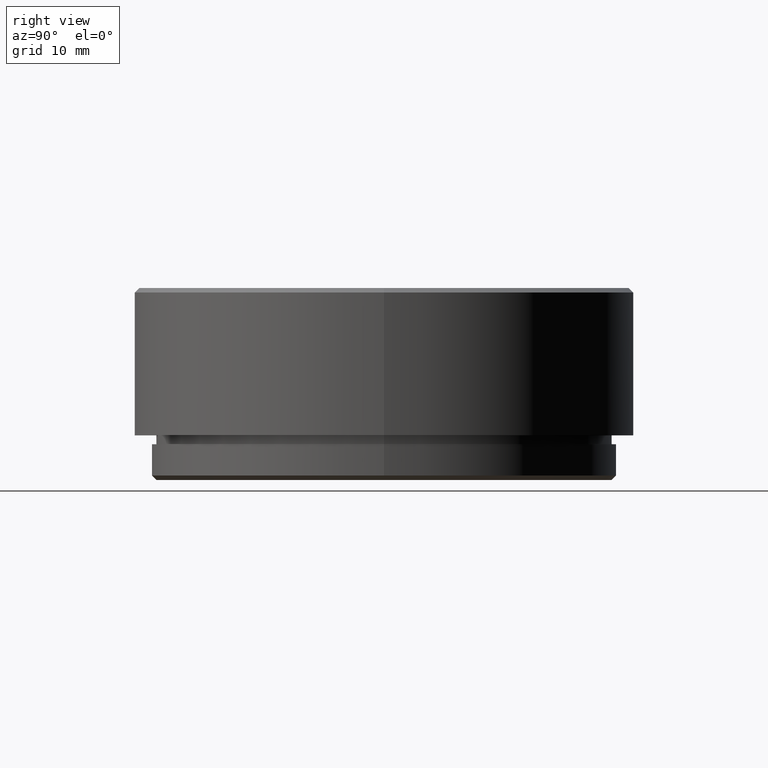
[diagram: clean part render]
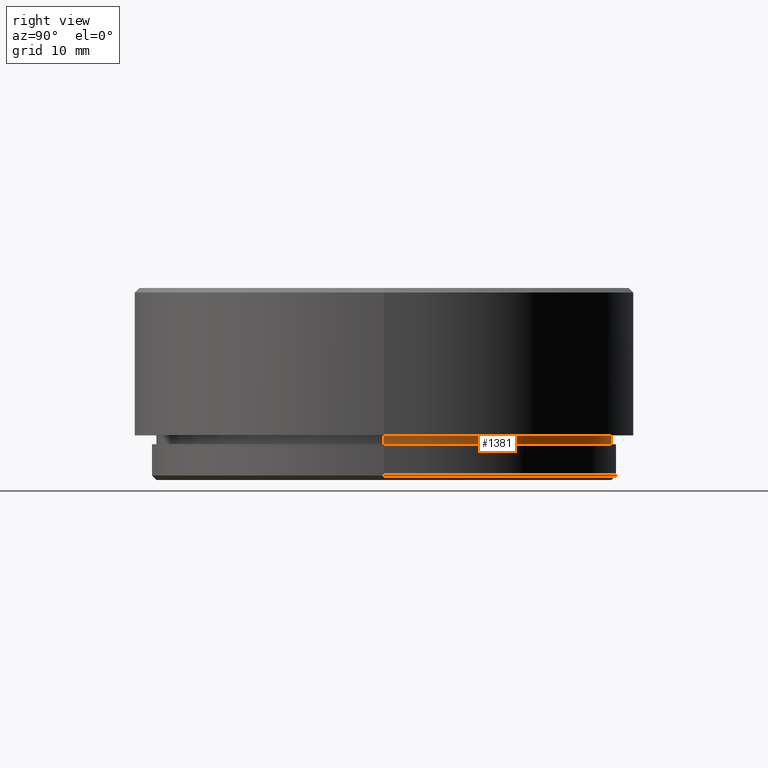
[diagram: same view with one face highlighted and labeled with its STEP entity id]
A machine part, right view. The second image highlights one B-rep face of the part: STEP entity #1381.
In plain terms, the highlighted cylindrical surface (partial cylindrical patch) has radius 25.5 mm, axis along (0, 0, 1).
Its self-contained STEP definition (entity closure, byte-faithful):
#97 = VECTOR ( 'NONE', #690, 1000.000000000000000 ) ;
#115 = CIRCLE ( 'NONE', #867, 25.50000000000000000 ) ;
#162 = DIRECTION ( 'NONE',  ( 1.000000000000000000, 0.000000000000000000, 0.000000000000000000 ) ) ;
#177 = CARTESIAN_POINT ( 'NONE',  ( 0.000000000000000000, 0.000000000000000000, 5.000000000000000000 ) ) ;
#225 = CARTESIAN_POINT ( 'NONE',  ( -25.50000000000000000, 3.122849337825750222E-15, 4.000000000000000000 ) ) ;
#242 = CARTESIAN_POINT ( 'NONE',  ( 0.000000000000000000, 0.000000000000000000, 4.000000000000000000 ) ) ;
#263 = DIRECTION ( 'NONE',  ( -1.000000000000000000, 0.000000000000000000, 0.000000000000000000 ) ) ;
#279 = CARTESIAN_POINT ( 'NONE',  ( 25.50000000000000000, 0.000000000000000000, 4.000000000000000000 ) ) ;
#288 = DIRECTION ( 'NONE',  ( 0.000000000000000000, 0.000000000000000000, 1.000000000000000000 ) ) ;
#423 = CARTESIAN_POINT ( 'NONE',  ( -25.50000000000000000, 3.122849337825750222E-15, 5.000000000000000000 ) ) ;
#579 = VECTOR ( 'NONE', #768, 1000.000000000000000 ) ;
#586 = DIRECTION ( 'NONE',  ( -1.000000000000000000, 0.000000000000000000, 0.000000000000000000 ) ) ;
#608 = ORIENTED_EDGE ( 'NONE', *, *, #689, .F. ) ;
#629 = LINE ( 'NONE', #910, #579 ) ;
#680 = CARTESIAN_POINT ( 'NONE',  ( -25.50000000000000000, 3.122849337825750222E-15, 4.000000000000000000 ) ) ;
#689 = EDGE_CURVE ( 'NONE', #1264, #1089, #629, .T. ) ;
#690 = DIRECTION ( 'NONE',  ( 0.000000000000000000, 0.000000000000000000, 1.000000000000000000 ) ) ;
#702 = ORIENTED_EDGE ( 'NONE', *, *, #1727, .T. ) ;
#726 = DIRECTION ( 'NONE',  ( 0.000000000000000000, 0.000000000000000000, -1.000000000000000000 ) ) ;
#742 = EDGE_LOOP ( 'NONE', ( #1413, #1317, #702, #608 ) ) ;
#768 = DIRECTION ( 'NONE',  ( 0.000000000000000000, 0.000000000000000000, 1.000000000000000000 ) ) ;
#773 = VERTEX_POINT ( 'NONE', #225 ) ;
#867 = AXIS2_PLACEMENT_3D ( 'NONE', #242, #1208, #263 ) ;
#868 = EDGE_CURVE ( 'NONE', #773, #1264, #115, .T. ) ;
#910 = CARTESIAN_POINT ( 'NONE',  ( 25.50000000000000000, 0.000000000000000000, 4.000000000000000000 ) ) ;
#992 = CYLINDRICAL_SURFACE ( 'NONE', #1489, 25.50000000000000000 ) ;
#1089 = VERTEX_POINT ( 'NONE', #1324 ) ;
#1114 = LINE ( 'NONE', #680, #97 ) ;
#1208 = DIRECTION ( 'NONE',  ( 0.000000000000000000, 0.000000000000000000, -1.000000000000000000 ) ) ;
#1264 = VERTEX_POINT ( 'NONE', #279 ) ;
#1317 = ORIENTED_EDGE ( 'NONE', *, *, #1332, .T. ) ;
#1324 = CARTESIAN_POINT ( 'NONE',  ( 25.50000000000000000, 0.000000000000000000, 5.000000000000000000 ) ) ;
#1328 = AXIS2_PLACEMENT_3D ( 'NONE', #177, #726, #586 ) ;
#1332 = EDGE_CURVE ( 'NONE', #773, #1339, #1114, .T. ) ;
#1339 = VERTEX_POINT ( 'NONE', #423 ) ;
#1381 = ADVANCED_FACE ( 'NONE', ( #1502 ), #992, .T. ) ;
#1392 = CARTESIAN_POINT ( 'NONE',  ( 0.000000000000000000, 0.000000000000000000, 4.000000000000000000 ) ) ;
#1413 = ORIENTED_EDGE ( 'NONE', *, *, #868, .F. ) ;
#1489 = AXIS2_PLACEMENT_3D ( 'NONE', #1392, #288, #162 ) ;
#1502 = FACE_OUTER_BOUND ( 'NONE', #742, .T. ) ;
#1527 = CIRCLE ( 'NONE', #1328, 25.50000000000000000 ) ;
#1727 = EDGE_CURVE ( 'NONE', #1339, #1089, #1527, .T. ) ;